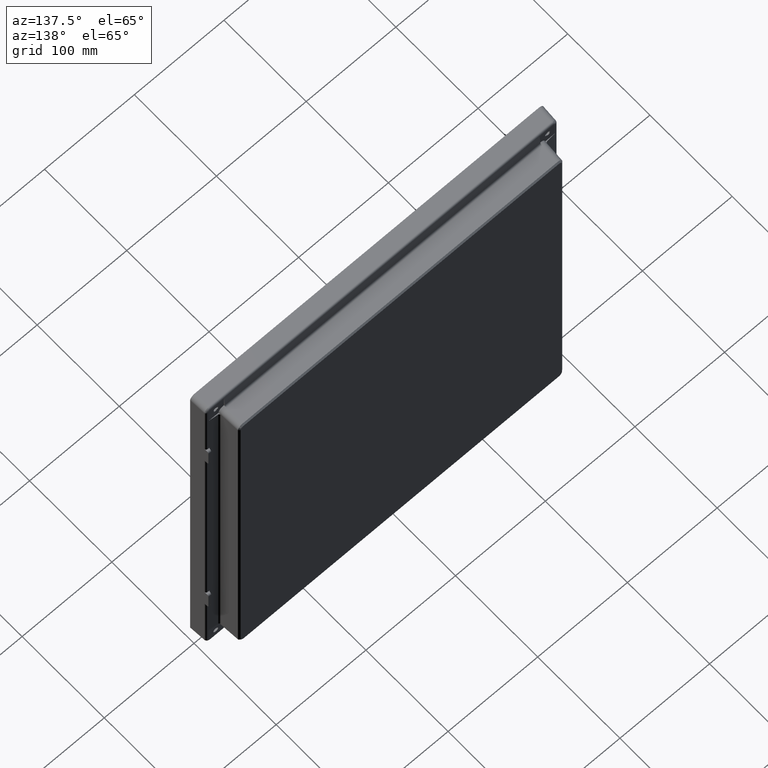
[diagram: clean part render]
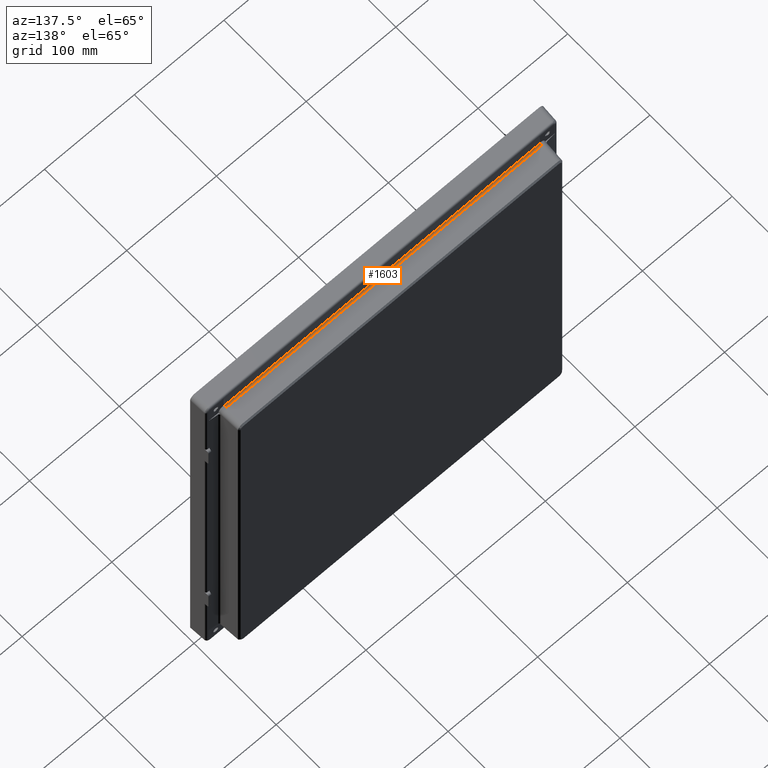
[diagram: same view with one face highlighted and labeled with its STEP entity id]
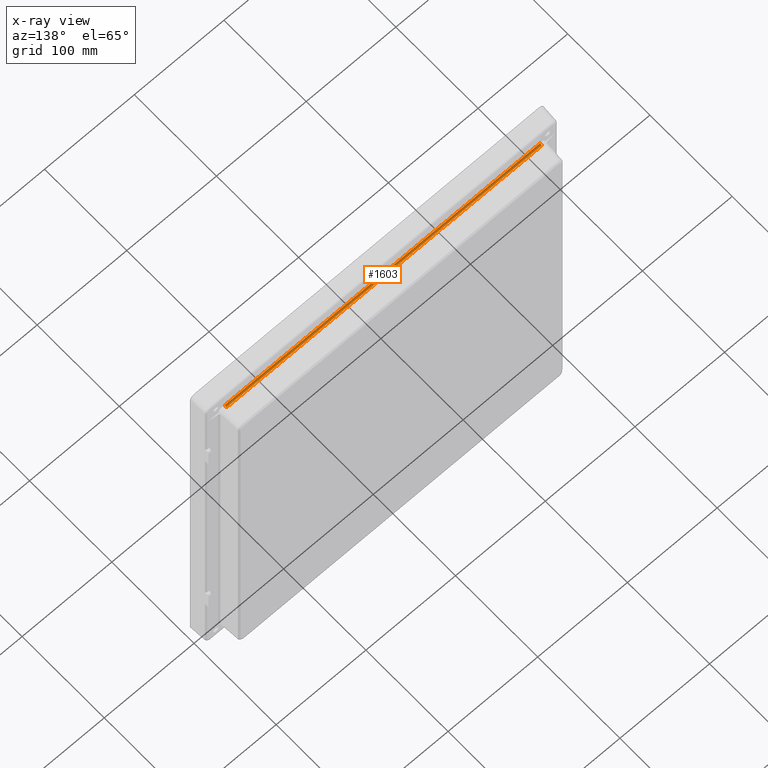
[diagram: x-ray of the same camera — body ghosted, the highlighted face saturated]
A machine part, auxiliary view. The second image highlights one B-rep face of the part: STEP entity #1603.
The next image is the same camera in x-ray: the body ghosted, the highlighted face saturated — about 0% of this face is hidden behind the body in this view.
In plain terms, the highlighted cylindrical surface (edge-blend (fillet) strip) has radius 2 mm, axis along (1, 0, 0).
Its self-contained STEP definition (entity closure, byte-faithful):
#582 =( BOUNDED_CURVE ( )  B_SPLINE_CURVE ( 3, ( #28999, #21871, #19503, #21152 ),
 .UNSPECIFIED., .F., .F. ) 
 B_SPLINE_CURVE_WITH_KNOTS ( ( 4, 4 ),
 ( 4.764748857944519000, 6.187192198319897900 ),
 .UNSPECIFIED. ) 
 CURVE ( )  GEOMETRIC_REPRESENTATION_ITEM ( )  RATIONAL_B_SPLINE_CURVE ( ( 1.000000000000000000, 0.8383766562560329700, 0.8383766562560329700, 1.000000000000000000 ) ) 
 REPRESENTATION_ITEM ( '' )  );
#1603 = ADVANCED_FACE ( 'NONE', ( #18852 ), #4033, .F. ) ;
#1945 = ORIENTED_EDGE ( 'NONE', *, *, #28463, .F. ) ;
#2784 = CARTESIAN_POINT ( 'NONE',  ( -175.9070191967502400, 11.45857295071096600, 210.0780629436868600 ) ) ;
#3000 = CARTESIAN_POINT ( 'NONE',  ( -175.8677180921286300, 12.20848269997624800, 209.3601805332787900 ) ) ;
#4033 = CYLINDRICAL_SURFACE ( 'NONE', #18770, 2.000000000000001800 ) ;
#4732 = EDGE_CURVE ( 'NONE', #18518, #8170, #18580, .T. ) ;
#8170 = VERTEX_POINT ( 'NONE', #11100 ) ;
#8734 = ORIENTED_EDGE ( 'NONE', *, *, #22876, .F. ) ;
#9125 = DIRECTION ( 'NONE',  ( 0.0000000000000000000, 0.0000000000000000000, -1.000000000000000000 ) ) ;
#11100 = CARTESIAN_POINT ( 'NONE',  ( -175.9122338034378000, 11.35907232773465700, 211.1114164230169500 ) ) ;
#11538 = VERTEX_POINT ( 'NONE', #17036 ) ;
#12908 = CARTESIAN_POINT ( 'NONE',  ( 175.9035775073937200, 13.24519281198312500, 209.3058488585482500 ) ) ;
#14232 = CARTESIAN_POINT ( 'NONE',  ( -175.9035775073936300, 11.35907232773465500, 211.1114164230169500 ) ) ;
#15988 = ORIENTED_EDGE ( 'NONE', *, *, #26655, .F. ) ;
#16121 = VECTOR ( 'NONE', #17378, 1000.000000000000000 ) ;
#16690 = CARTESIAN_POINT ( 'NONE',  ( 175.9122338034379100, 11.35907232773465500, 211.1114164230169500 ) ) ;
#17036 = CARTESIAN_POINT ( 'NONE',  ( 175.8133864173982200, 13.24519281198312500, 209.3058488585482500 ) ) ;
#17378 = DIRECTION ( 'NONE',  ( 1.000000000000000000, -0.0000000000000000000, 0.0000000000000000000 ) ) ;
#18438 = ORIENTED_EDGE ( 'NONE', *, *, #4732, .F. ) ;
#18518 = VERTEX_POINT ( 'NONE', #16690 ) ;
#18580 = LINE ( 'NONE', #14232, #21521 ) ;
#18770 = AXIS2_PLACEMENT_3D ( 'NONE', #28216, #28013, #9125 ) ;
#18852 = FACE_OUTER_BOUND ( 'NONE', #23525, .T. ) ;
#18876 = CARTESIAN_POINT ( 'NONE',  ( -175.8133864173980500, 13.24519281198312500, 209.3058488585482500 ) ) ;
#19453 = CARTESIAN_POINT ( 'NONE',  ( -175.8133864173980500, 13.24519281198312500, 209.3058488585482500 ) ) ;
#19503 = CARTESIAN_POINT ( 'NONE',  ( 175.9070191967504700, 11.45857295071096800, 210.0780629436868300 ) ) ;
#20711 =( BOUNDED_CURVE ( )  B_SPLINE_CURVE ( 3, ( #24357, #2784, #3000, #19453 ),
 .UNSPECIFIED., .F., .F. ) 
 B_SPLINE_CURVE_WITH_KNOTS ( ( 4, 4 ),
 ( 3.237585762449481000, 4.660029102824859500 ),
 .UNSPECIFIED. ) 
 CURVE ( )  GEOMETRIC_REPRESENTATION_ITEM ( )  RATIONAL_B_SPLINE_CURVE ( ( 1.000000000000000000, 0.8383766562560330800, 0.8383766562560330800, 1.000000000000000000 ) ) 
 REPRESENTATION_ITEM ( '' )  );
#21152 = CARTESIAN_POINT ( 'NONE',  ( 175.9122338034379100, 11.35907232773465500, 211.1114164230169500 ) ) ;
#21521 = VECTOR ( 'NONE', #28597, 1000.000000000000000 ) ;
#21871 = CARTESIAN_POINT ( 'NONE',  ( 175.8677180921288000, 12.20848269997624600, 209.3601805332787900 ) ) ;
#22876 = EDGE_CURVE ( 'NONE', #8170, #24851, #20711, .T. ) ;
#23525 = EDGE_LOOP ( 'NONE', ( #8734, #18438, #1945, #15988 ) ) ;
#24357 = CARTESIAN_POINT ( 'NONE',  ( -175.9122338034378000, 11.35907232773465700, 211.1114164230169500 ) ) ;
#24851 = VERTEX_POINT ( 'NONE', #18876 ) ;
#25740 = LINE ( 'NONE', #12908, #16121 ) ;
#26655 = EDGE_CURVE ( 'NONE', #24851, #11538, #25740, .T. ) ;
#28013 = DIRECTION ( 'NONE',  ( 1.000000000000000000, 0.0000000000000000000, 0.0000000000000000000 ) ) ;
#28216 = CARTESIAN_POINT ( 'NONE',  ( -195.9759222071697600, 13.34986472446901300, 211.3031079280573900 ) ) ;
#28463 = EDGE_CURVE ( 'NONE', #11538, #18518, #582, .T. ) ;
#28597 = DIRECTION ( 'NONE',  ( -1.000000000000000000, 0.0000000000000000000, -0.0000000000000000000 ) ) ;
#28999 = CARTESIAN_POINT ( 'NONE',  ( 175.8133864173982200, 13.24519281198312500, 209.3058488585482500 ) ) ;